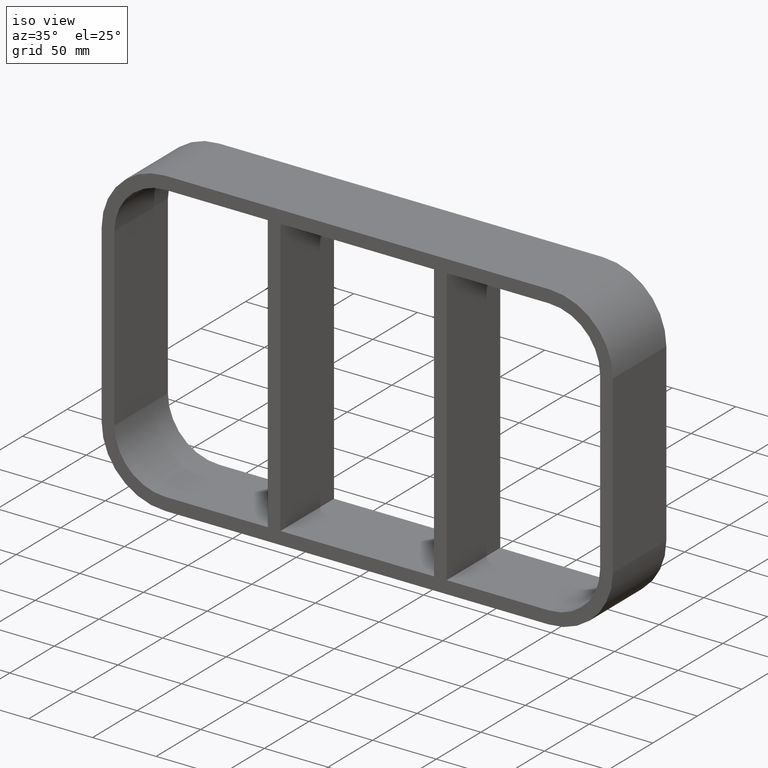
[diagram: clean part render]
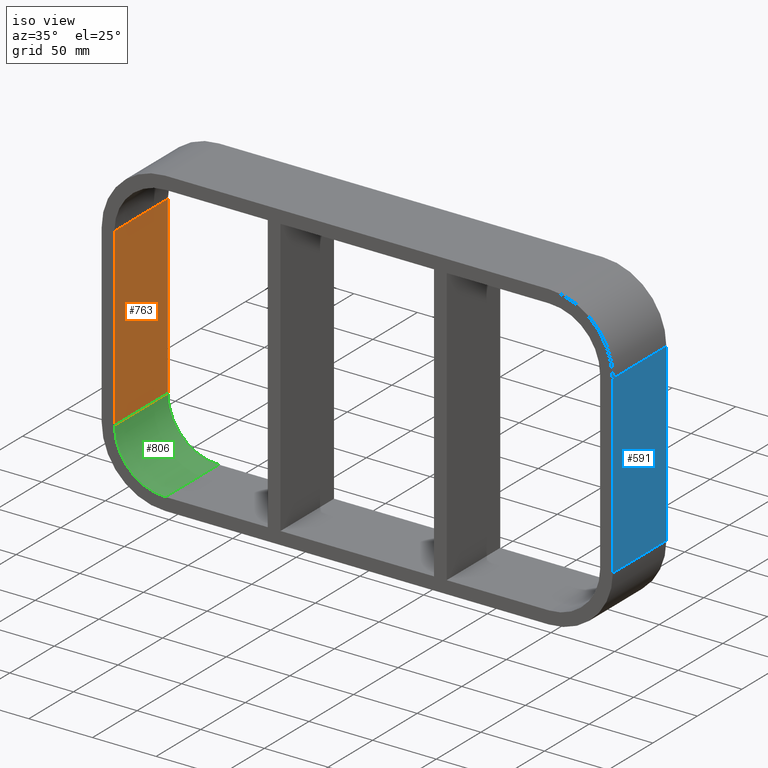
[diagram: same view with three faces highlighted in distinct colors, each labeled with its STEP entity id]
A machine part, iso view with three faces highlighted in distinct colors.
Their STEP definitions:

[orange] entity #763 — the highlighted planar face has unit normal (-1, 0, 0).
#510=CARTESIAN_POINT('',(-190.75000000000003,-3.0,-68.999999999999986));
#511=VERTEX_POINT('',#510);
#519=CARTESIAN_POINT('',(-190.75000000000003,-3.0,68.999999999999986));
#520=VERTEX_POINT('',#519);
#521=CARTESIAN_POINT('',(-190.75000000000003,-3.0,-68.999999999999986));
#522=DIRECTION('',(0.0,0.0,1.0));
#523=VECTOR('',#522,137.99999999999994);
#524=LINE('',#521,#523);
#525=EDGE_CURVE('',#511,#520,#524,.T.);
#721=CARTESIAN_POINT('',(-190.75000000000003,57.0,68.999999999999986));
#722=VERTEX_POINT('',#721);
#723=CARTESIAN_POINT('',(-190.75000000000003,-3.0,68.999999999999986));
#724=DIRECTION('',(0.0,1.0,0.0));
#725=VECTOR('',#724,60.0);
#726=LINE('',#723,#725);
#727=EDGE_CURVE('',#520,#722,#726,.T.);
#740=CARTESIAN_POINT('',(-190.75000000000003,0.0,-108.99999999999999));
#741=DIRECTION('',(-1.0,0.0,0.0));
#742=DIRECTION('',(0.0,0.0,1.0));
#743=AXIS2_PLACEMENT_3D('',#740,#741,#742);
#744=PLANE('',#743);
#745=ORIENTED_EDGE('',*,*,#727,.F.);
#746=ORIENTED_EDGE('',*,*,#525,.F.);
#747=CARTESIAN_POINT('',(-190.75000000000003,57.0,-68.999999999999986));
#748=VERTEX_POINT('',#747);
#749=CARTESIAN_POINT('',(-190.75000000000003,57.0,-68.999999999999986));
#750=DIRECTION('',(0.0,-1.0,0.0));
#751=VECTOR('',#750,60.0);
#752=LINE('',#749,#751);
#753=EDGE_CURVE('',#748,#511,#752,.T.);
#754=ORIENTED_EDGE('',*,*,#753,.F.);
#755=CARTESIAN_POINT('',(-190.75000000000003,57.0,68.999999999999972));
#756=DIRECTION('',(0.0,0.0,-1.0));
#757=VECTOR('',#756,137.99999999999994);
#758=LINE('',#755,#757);
#759=EDGE_CURVE('',#722,#748,#758,.T.);
#760=ORIENTED_EDGE('',*,*,#759,.F.);
#761=EDGE_LOOP('',(#745,#746,#754,#760));
#762=FACE_OUTER_BOUND('',#761,.T.);
#763=ADVANCED_FACE('',(#762),#744,.F.);

[blue] entity #591 — the highlighted planar face has unit normal (1, 0, 0).
#403=CARTESIAN_POINT('',(200.75000000000003,57.0,-68.999999999999986));
#404=VERTEX_POINT('',#403);
#412=CARTESIAN_POINT('',(200.75000000000003,-3.0,-68.999999999999986));
#413=VERTEX_POINT('',#412);
#414=CARTESIAN_POINT('',(200.75000000000003,57.0,-68.999999999999986));
#415=DIRECTION('',(0.0,-1.0,0.0));
#416=VECTOR('',#415,60.0);
#417=LINE('',#414,#416);
#418=EDGE_CURVE('',#404,#413,#417,.T.);
#444=CARTESIAN_POINT('',(200.75000000000003,-3.0,68.999999999999986));
#445=VERTEX_POINT('',#444);
#446=CARTESIAN_POINT('',(200.75000000000003,-3.0,-68.999999999999986));
#447=DIRECTION('',(0.0,0.0,1.0));
#448=VECTOR('',#447,137.99999999999997);
#449=LINE('',#446,#448);
#450=EDGE_CURVE('',#413,#445,#449,.T.);
#568=CARTESIAN_POINT('',(200.75000000000003,0.0,118.99999999999999));
#569=DIRECTION('',(1.0,0.0,0.0));
#570=DIRECTION('',(0.0,0.0,-1.0));
#571=AXIS2_PLACEMENT_3D('',#568,#569,#570);
#572=PLANE('',#571);
#573=ORIENTED_EDGE('',*,*,#418,.F.);
#574=CARTESIAN_POINT('',(200.75000000000003,57.0,68.999999999999986));
#575=VERTEX_POINT('',#574);
#576=CARTESIAN_POINT('',(200.75000000000003,57.0,68.999999999999986));
#577=DIRECTION('',(0.0,0.0,-1.0));
#578=VECTOR('',#577,137.99999999999997);
#579=LINE('',#576,#578);
#580=EDGE_CURVE('',#575,#404,#579,.T.);
#581=ORIENTED_EDGE('',*,*,#580,.F.);
#582=CARTESIAN_POINT('',(200.75000000000003,-3.0,68.999999999999986));
#583=DIRECTION('',(0.0,1.0,0.0));
#584=VECTOR('',#583,60.0);
#585=LINE('',#582,#584);
#586=EDGE_CURVE('',#445,#575,#585,.T.);
#587=ORIENTED_EDGE('',*,*,#586,.F.);
#588=ORIENTED_EDGE('',*,*,#450,.F.);
#589=EDGE_LOOP('',(#573,#581,#587,#588));
#590=FACE_OUTER_BOUND('',#589,.T.);
#591=ADVANCED_FACE('',(#590),#572,.T.);

[green] entity #806 — the highlighted cylindrical surface (partial cylindrical patch) has radius 40 mm, axis along (0, 1, 0).
#340=CARTESIAN_POINT('',(-150.75,57.0,-108.99999999999999));
#341=VERTEX_POINT('',#340);
#348=CARTESIAN_POINT('',(-150.75,-3.0,-108.99999999999999));
#349=VERTEX_POINT('',#348);
#350=CARTESIAN_POINT('',(-150.75,-3.0,-108.99999999999999));
#351=DIRECTION('',(0.0,1.0,0.0));
#352=VECTOR('',#351,60.0);
#353=LINE('',#350,#352);
#354=EDGE_CURVE('',#349,#341,#353,.T.);
#510=CARTESIAN_POINT('',(-190.75000000000003,-3.0,-68.999999999999986));
#511=VERTEX_POINT('',#510);
#512=CARTESIAN_POINT('',(-150.75,-3.0,-68.999999999999986));
#513=DIRECTION('',(0.0,-1.0,0.0));
#514=DIRECTION('',(-0.707106781186548,0.0,-0.707106781186547));
#515=AXIS2_PLACEMENT_3D('',#512,#513,#514);
#516=CIRCLE('',#515,40.0);
#517=EDGE_CURVE('',#511,#349,#516,.T.);
#747=CARTESIAN_POINT('',(-190.75000000000003,57.0,-68.999999999999986));
#748=VERTEX_POINT('',#747);
#749=CARTESIAN_POINT('',(-190.75000000000003,57.0,-68.999999999999986));
#750=DIRECTION('',(0.0,-1.0,0.0));
#751=VECTOR('',#750,60.0);
#752=LINE('',#749,#751);
#753=EDGE_CURVE('',#748,#511,#752,.T.);
#789=CARTESIAN_POINT('',(-150.75,0.0,-68.999999999999986));
#790=DIRECTION('',(0.0,1.0,0.0));
#791=DIRECTION('',(-0.707106781186548,0.0,-0.707106781186547));
#792=AXIS2_PLACEMENT_3D('',#789,#790,#791);
#793=CYLINDRICAL_SURFACE('',#792,40.0);
#794=ORIENTED_EDGE('',*,*,#517,.T.);
#795=ORIENTED_EDGE('',*,*,#354,.T.);
#796=CARTESIAN_POINT('',(-150.75,57.0,-68.999999999999986));
#797=DIRECTION('',(0.0,1.0,0.0));
#798=DIRECTION('',(-0.707106781186548,0.0,-0.707106781186547));
#799=AXIS2_PLACEMENT_3D('',#796,#797,#798);
#800=CIRCLE('',#799,40.0);
#801=EDGE_CURVE('',#341,#748,#800,.T.);
#802=ORIENTED_EDGE('',*,*,#801,.T.);
#803=ORIENTED_EDGE('',*,*,#753,.T.);
#804=EDGE_LOOP('',(#794,#795,#802,#803));
#805=FACE_OUTER_BOUND('',#804,.T.);
#806=ADVANCED_FACE('',(#805),#793,.F.);